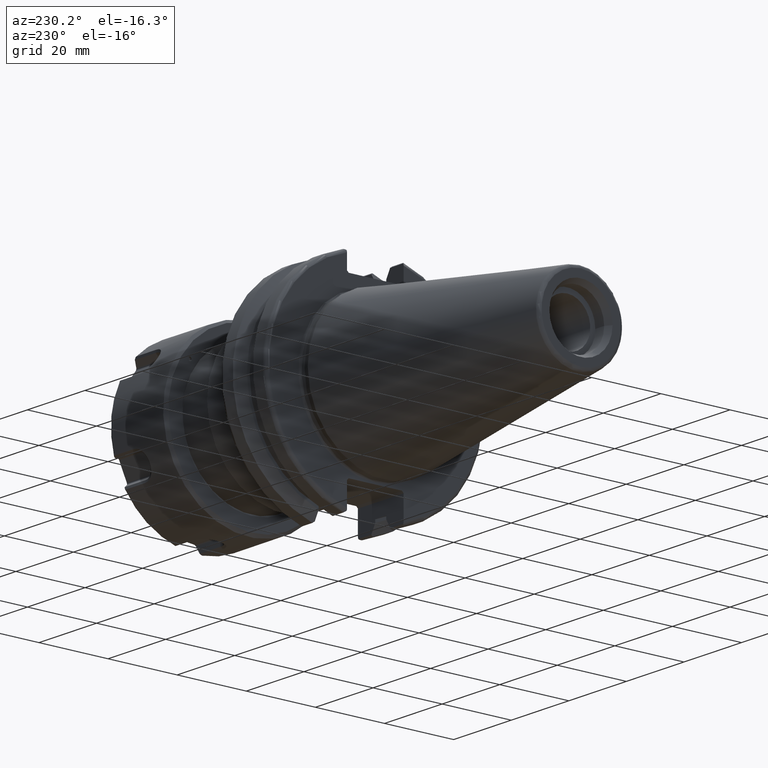
[diagram: clean part render]
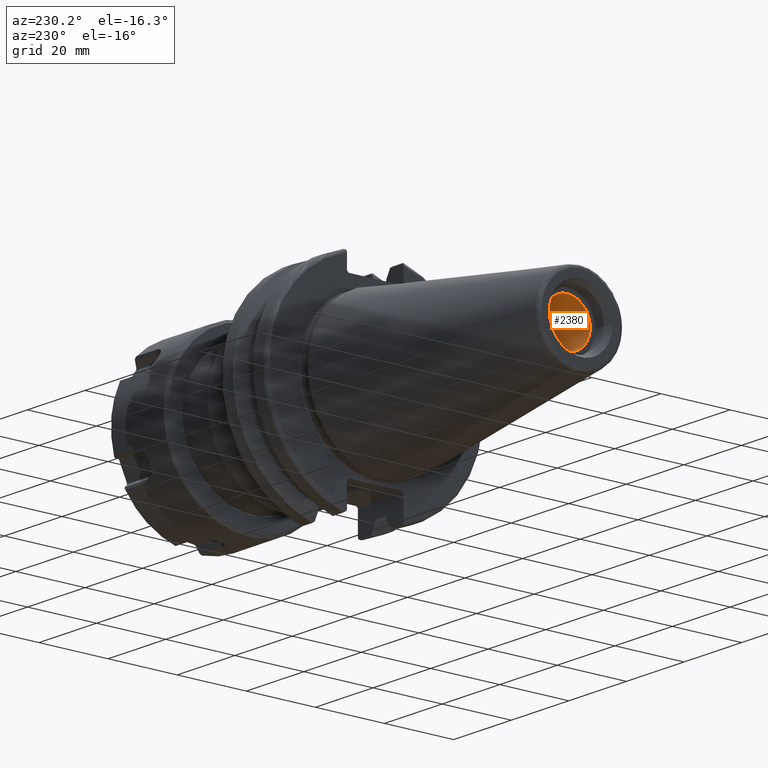
[diagram: same view with one face highlighted and labeled with its STEP entity id]
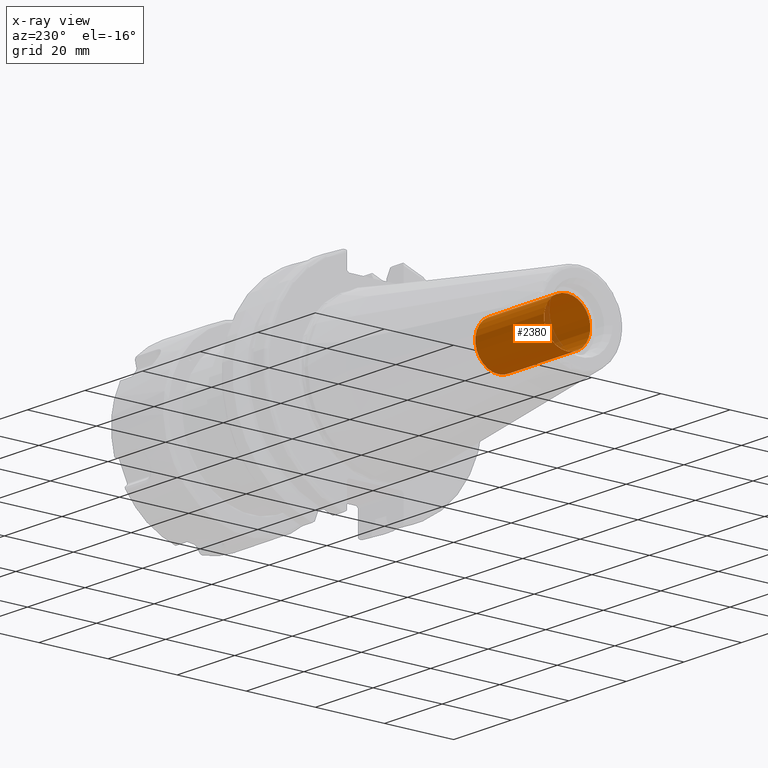
[diagram: x-ray of the same camera — body ghosted, the highlighted face saturated]
A machine part, auxiliary view. The second image highlights one B-rep face of the part: STEP entity #2380.
The next image is the same camera in x-ray: the body ghosted, the highlighted face saturated — about 4% of this face is hidden behind the body in this view.
In plain terms, the highlighted cylindrical surface (bore or boss wall) has radius 6.6929 mm, axis along (-1, 0, 0).
Its self-contained STEP definition (entity closure, byte-faithful):
#313=CYLINDRICAL_SURFACE('',#2602,6.6929);
#347=FACE_OUTER_BOUND('',#490,.T.);
#490=EDGE_LOOP('',(#1652,#1653,#1654,#1655,#1656));
#647=LINE('',#3506,#801);
#801=VECTOR('',#2863,6.6929);
#954=CIRCLE('',#2598,6.6929);
#955=CIRCLE('',#2599,6.6929);
#957=CIRCLE('',#2603,6.6929);
#1059=VERTEX_POINT('',#3494);
#1060=VERTEX_POINT('',#3496);
#1062=VERTEX_POINT('',#3504);
#1288=EDGE_CURVE('',#1060,#1059,#954,.T.);
#1289=EDGE_CURVE('',#1059,#1060,#955,.T.);
#1292=EDGE_CURVE('',#1062,#1062,#957,.T.);
#1293=EDGE_CURVE('',#1062,#1060,#647,.T.);
#1652=ORIENTED_EDGE('',*,*,#1292,.F.);
#1653=ORIENTED_EDGE('',*,*,#1293,.T.);
#1654=ORIENTED_EDGE('',*,*,#1288,.T.);
#1655=ORIENTED_EDGE('',*,*,#1289,.T.);
#1656=ORIENTED_EDGE('',*,*,#1293,.F.);
#2380=ADVANCED_FACE('',(#347),#313,.F.);
#2598=AXIS2_PLACEMENT_3D('',#3497,#2850,#2851);
#2599=AXIS2_PLACEMENT_3D('',#3498,#2852,#2853);
#2602=AXIS2_PLACEMENT_3D('',#3503,#2859,#2860);
#2603=AXIS2_PLACEMENT_3D('',#3505,#2861,#2862);
#2850=DIRECTION('center_axis',(1.,0.,0.));
#2851=DIRECTION('ref_axis',(0.,0.,1.));
#2852=DIRECTION('center_axis',(1.,0.,0.));
#2853=DIRECTION('ref_axis',(0.,0.,1.));
#2859=DIRECTION('center_axis',(-1.,0.,0.));
#2860=DIRECTION('ref_axis',(0.,0.,1.));
#2861=DIRECTION('center_axis',(1.,0.,0.));
#2862=DIRECTION('ref_axis',(0.,0.,1.));
#2863=DIRECTION('',(1.,0.,0.));
#3494=CARTESIAN_POINT('',(-39.556660361262,-8.19643856201332E-16,6.6929));
#3496=CARTESIAN_POINT('',(-39.556660361262,8.19643856201332E-16,-6.6929));
#3497=CARTESIAN_POINT('Origin',(-39.556660361262,0.,0.));
#3498=CARTESIAN_POINT('Origin',(-39.556660361262,0.,0.));
#3503=CARTESIAN_POINT('Origin',(-37.5,0.,0.));
#3504=CARTESIAN_POINT('',(-63.45,8.19643856201332E-16,-6.6929));
#3505=CARTESIAN_POINT('Origin',(-63.45,0.,0.));
#3506=CARTESIAN_POINT('',(-37.5,-8.19643856201332E-16,-6.6929));